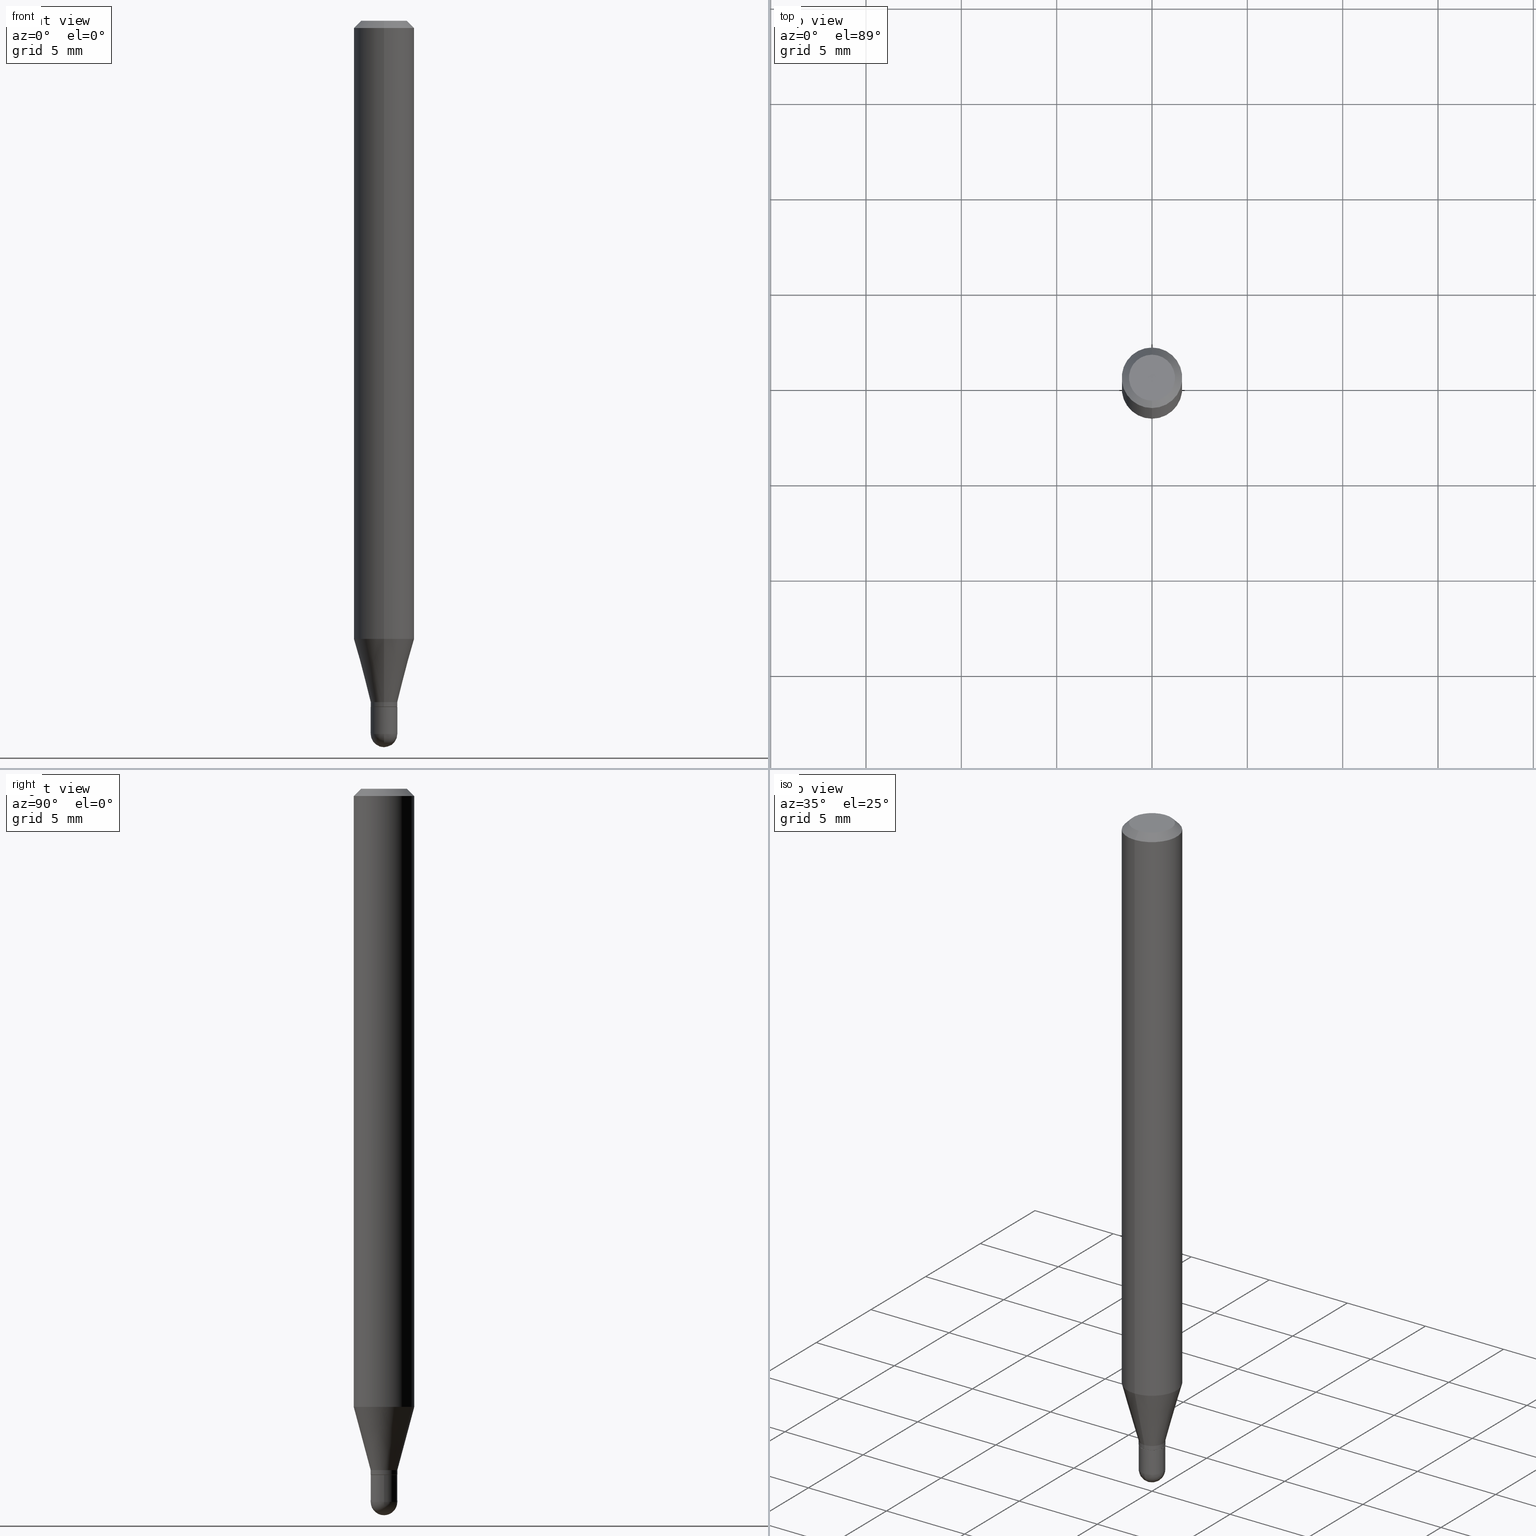
[diagram: canonical four-view strip — front | top / right | iso, engineering-drawing reading convention]
A machine part, canonical four-view strip (front | top / right | iso — engineering-drawing reading convention). The complete STEP part file that produces these views, byte-faithful:
ISO-10303-21;
HEADER;
FILE_DESCRIPTION (( 'STEP AP203' ),
    '1' );
FILE_NAME ('00790.STEP',
    '2024-03-07T18:22:22',
    ( '' ),
    ( '' ),
    'SwSTEP 2.0',
    'SolidWorks 2023',
    '' );
FILE_SCHEMA (( 'CONFIG_CONTROL_DESIGN' ));
ENDSEC;

DATA;
#1 = CIRCLE ( 'NONE', #200, 0.02750000000000000014 ) ;
#2 = CARTESIAN_POINT ( 'NONE',  ( -3.773273898774340269E-16, -0.04749999999999999362, 1.569840803881563153E-16 ) ) ;
#3 = ORIENTED_EDGE ( 'NONE', *, *, #75, .T. ) ;
#4 = CARTESIAN_POINT ( 'NONE',  ( -1.885399922974945041E-16, -0.02700000000000494713, -1.417000000000000259 ) ) ;
#5 = ORIENTED_EDGE ( 'NONE', *, *, #28, .T. ) ;
#6 = SPHERICAL_SURFACE ( 'NONE', #468, 0.02749999999999996197 ) ;
#7 = EDGE_LOOP ( 'NONE', ( #124, #490, #376, #90 ) ) ;
#8 = FACE_OUTER_BOUND ( 'NONE', #131, .T. ) ;
#9 = EDGE_CURVE ( 'NONE', #419, #98, #21, .T. ) ;
#10 = VECTOR ( 'NONE', #345, 39.37007874015748143 ) ;
#11 = ORIENTED_EDGE ( 'NONE', *, *, #195, .T. ) ;
#12 = PRODUCT_DEFINITION_FORMATION_WITH_SPECIFIED_SOURCE ( 'ANY', '', #249, .NOT_KNOWN. ) ;
#13 = MANIFOLD_SOLID_BREP ( 'Body-Move/Copy2[2]', #189 ) ;
#14 = DIRECTION ( 'NONE',  ( -4.851104656540964275E-15, -0.7071067811865500152, -0.7071067811865450192 ) ) ;
#15 = DIMENSIONAL_EXPONENTS ( 1.000000000000000000, 0.000000000000000000, 0.000000000000000000, 0.000000000000000000, 0.000000000000000000, 0.000000000000000000, 0.000000000000000000 ) ;
#16 = VERTEX_POINT ( 'NONE', #381 ) ;
#17 = FACE_OUTER_BOUND ( 'NONE', #172, .T. ) ;
#18 = DIRECTION ( 'NONE',  ( -6.982962677686266711E-15, -1.000000000000000000, 3.491471195526703982E-15 ) ) ;
#19 = DIRECTION ( 'NONE',  ( -2.445475889225150789E-29, 3.491471195526703587E-15, 1.000000000000000000 ) ) ;
#20 = ORIENTED_EDGE ( 'NONE', *, *, #276, .F. ) ;
#21 = CIRCLE ( 'NONE', #414, 0.02699999999999999969 ) ;
#22 = VECTOR ( 'NONE', #363, 39.37007874015748143 ) ;
#23 = ORIENTED_EDGE ( 'NONE', *, *, #258, .F. ) ;
#24 = CARTESIAN_POINT ( 'NONE',  ( 3.440784576139787326E-29, -4.912499972106071714E-15, -1.407000000000000028 ) ) ;
#25 = ORIENTED_EDGE ( 'NONE', *, *, #424, .F. ) ;
#26 = PERSON_AND_ORGANIZATION_ROLE ( 'classification_officer' ) ;
#27 = CARTESIAN_POINT ( 'NONE',  ( -1.885399922974945041E-16, -0.02700000000000494713, -1.417000000000000259 ) ) ;
#28 = EDGE_CURVE ( 'NONE', #366, #297, #430, .T. ) ;
#29 = CIRCLE ( 'NONE', #160, 0.02699999999999999969 ) ;
#30 = APPLICATION_PROTOCOL_DEFINITION ( 'international standard', 'config_control_design', 1994, #62 ) ;
#31 = DIRECTION ( 'NONE',  ( -6.982962677686265922E-15, -1.000000000000000000, 3.483106191921935554E-15 ) ) ;
#32 = CALENDAR_DATE ( 2024, 7, 3 ) ;
#33 = LINE ( 'NONE', #113, #500 ) ;
#34 = APPLICATION_CONTEXT ( 'configuration controlled 3d designs of mechanical parts and assemblies' ) ;
#35 = ADVANCED_FACE ( 'NONE', ( #275 ), #269, .T. ) ;
#36 = DIRECTION ( 'NONE',  ( 1.000000000000000000, 0.000000000000000000, 0.000000000000000000 ) ) ;
#37 = DIRECTION ( 'NONE',  ( 1.000000000000000000, -6.982962677686277755E-15, 0.000000000000000000 ) ) ;
#38 = AXIS2_PLACEMENT_3D ( 'NONE', #394, #204, #463 ) ;
#39 = CIRCLE ( 'NONE', #415, 0.02750000000000000014 ) ;
#40 = DATE_TIME_ROLE ( 'classification_date' ) ;
#41 = LOCAL_TIME ( 13, 22, 22.00000000000000000, #503 ) ;
#42 = DIRECTION ( 'NONE',  ( -6.982962677686265922E-15, -1.000000000000000000, 0.000000000000000000 ) ) ;
#43 = DIRECTION ( 'NONE',  ( 2.445475889225150509E-29, -3.491471195526703587E-15, -1.000000000000000000 ) ) ;
#44 = CARTESIAN_POINT ( 'NONE',  ( 0.000000000000000000, 0.000000000000000000, 0.000000000000000000 ) ) ;
#45 = ADVANCED_FACE ( 'NONE', ( #64 ), #231, .T. ) ;
#46 = ORIENTED_EDGE ( 'NONE', *, *, #418, .F. ) ;
#47 = CIRCLE ( 'NONE', #357, 0.06250000000000000000 ) ;
#48 = DIRECTION ( 'NONE',  ( 2.445475889225150789E-29, -3.491471195526703587E-15, -1.000000000000000000 ) ) ;
#49 = LINE ( 'NONE', #212, #22 ) ;
#50 = ORIENTED_EDGE ( 'NONE', *, *, #386, .T. ) ;
#51 = EDGE_CURVE ( 'NONE', #498, #122, #1, .T. ) ;
#52 = DIRECTION ( 'NONE',  ( -2.445468806185136597E-29, 3.491481338843145583E-15, 1.000000000000000000 ) ) ;
#53 = ORIENTED_EDGE ( 'NONE', *, *, #407, .T. ) ;
#54 = DIRECTION ( 'NONE',  ( -2.445475889225150789E-29, 3.491471195526703587E-15, 1.000000000000000000 ) ) ;
#55 = AXIS2_PLACEMENT_3D ( 'NONE', #385, #185, #344 ) ;
#56 = ORGANIZATION ( 'UNSPECIFIED', 'UNSPECIFIED', '' ) ;
#57 = ORIENTED_EDGE ( 'NONE', *, *, #106, .F. ) ;
#58 = FACE_OUTER_BOUND ( 'NONE', #421, .T. ) ;
#59 = DIRECTION ( 'NONE',  ( -2.445475889225150789E-29, 3.491471195526703587E-15, 1.000000000000000000 ) ) ;
#60 = DIRECTION ( 'NONE',  ( 6.982962677686265922E-15, 1.000000000000000000, -3.483106191921935554E-15 ) ) ;
#61 = ORIENTED_EDGE ( 'NONE', *, *, #289, .F. ) ;
#62 = APPLICATION_CONTEXT ( 'configuration controlled 3d designs of mechanical parts and assemblies' ) ;
#63 = CARTESIAN_POINT ( 'NONE',  ( 3.598601109812370247E-29, -5.144574050144187163E-15, -1.472500000000000142 ) ) ;
#64 = FACE_OUTER_BOUND ( 'NONE', #273, .T. ) ;
#65 =( NAMED_UNIT ( * ) SI_UNIT ( $, .STERADIAN. ) SOLID_ANGLE_UNIT ( ) );
#66 = ORIENTED_EDGE ( 'NONE', *, *, #51, .T. ) ;
#67 = EDGE_CURVE ( 'NONE', #288, #336, #364, .T. ) ;
#68 = APPROVAL_DATE_TIME ( #355, #109 ) ;
#69 = CARTESIAN_POINT ( 'NONE',  ( 3.465229298364339647E-29, -4.947429057140738329E-15, -1.417000000000000259 ) ) ;
#70 = PERSON_AND_ORGANIZATION ( #399, #56 ) ;
#71 = FACE_OUTER_BOUND ( 'NONE', #261, .T. ) ;
#72 = CONICAL_SURFACE ( 'NONE', #285, 0.02699999999999999969, 0.7853981633974739252 ) ;
#73 = PERSON_AND_ORGANIZATION ( #399, #56 ) ;
#74 = FACE_OUTER_BOUND ( 'NONE', #163, .T. ) ;
#75 = EDGE_CURVE ( 'NONE', #297, #366, #483, .T. ) ;
#76 = SECURITY_CLASSIFICATION_LEVEL ( 'unclassified' ) ;
#77 = CARTESIAN_POINT ( 'NONE',  ( 3.440784576139787326E-29, -4.912499972106071714E-15, -1.407000000000000028 ) ) ;
#78 = LINE ( 'NONE', #323, #97 ) ;
#79 = AXIS2_PLACEMENT_3D ( 'NONE', #222, #377, #140 ) ;
#80 = DIRECTION ( 'NONE',  ( 6.982962677686265922E-15, 1.000000000000000000, 0.000000000000000000 ) ) ;
#81 = ADVANCED_FACE ( 'NONE', ( #149 ), #104, .T. ) ;
#82 = CARTESIAN_POINT ( 'NONE',  ( 3.440784576139787326E-29, -4.912499972106071714E-15, -1.407000000000000028 ) ) ;
#83 = ORIENTED_EDGE ( 'NONE', *, *, #135, .F. ) ;
#84 = FACE_OUTER_BOUND ( 'NONE', #7, .T. ) ;
#85 = VERTEX_POINT ( 'NONE', #501 ) ;
#86 = AXIS2_PLACEMENT_3D ( 'NONE', #471, #313, #354 ) ;
#87 = AXIS2_PLACEMENT_3D ( 'NONE', #234, #392, #31 ) ;
#88 = CARTESIAN_POINT ( 'NONE',  ( 3.840629472727447874E-16, 0.04749999999999999362, -1.747056831868805136E-16 ) ) ;
#89 = LOCAL_TIME ( 13, 22, 22.00000000000000000, #238 ) ;
#90 = ORIENTED_EDGE ( 'NONE', *, *, #379, .F. ) ;
#91 = CC_DESIGN_PERSON_AND_ORGANIZATION_ASSIGNMENT ( #308, #143, ( #249 ) ) ;
#92 = CYLINDRICAL_SURFACE ( 'NONE', #169, 0.02749999999999992381 ) ;
#93 = ORIENTED_EDGE ( 'NONE', *, *, #203, .F. ) ;
#94 = DIRECTION ( 'NONE',  ( -6.982962677686265922E-15, -1.000000000000000000, 3.483106191921935554E-15 ) ) ;
#95 = ORIENTED_EDGE ( 'NONE', *, *, #258, .T. ) ;
#96 = APPLICATION_PROTOCOL_DEFINITION ( 'international standard', 'config_control_design', 1994, #34 ) ;
#97 = VECTOR ( 'NONE', #243, 39.37007874015748143 ) ;
#98 = VERTEX_POINT ( 'NONE', #27 ) ;
#99 = DIRECTION ( 'NONE',  ( -1.000000000000000000, 6.982962677686265922E-15, -4.876176775795935793E-29 ) ) ;
#100 = VERTEX_POINT ( 'NONE', #352 ) ;
#101 = DIRECTION ( 'NONE',  ( -6.982962677686265922E-15, -1.000000000000000000, 3.491471195526703193E-15 ) ) ;
#102 = DIRECTION ( 'NONE',  ( -6.982962677686265133E-15, -1.000000000000000000, 0.000000000000000000 ) ) ;
#103 = EDGE_LOOP ( 'NONE', ( #23, #373, #371, #368 ) ) ;
#104 = CONICAL_SURFACE ( 'NONE', #227, 0.02749999999999992381, 0.2617993877991502960 ) ;
#105 = CONICAL_SURFACE ( 'NONE', #229, 0.02699999999999999969, 0.7853981633974739252 ) ;
#106 = EDGE_CURVE ( 'NONE', #336, #291, #432, .T. ) ;
#107 = DESIGN_CONTEXT ( 'detailed design', #62, 'design' ) ;
#108 = APPROVAL_STATUS ( 'not_yet_approved' ) ;
#109 = APPROVAL ( #391, 'UNSPECIFIED' ) ;
#110 = VERTEX_POINT ( 'NONE', #282 ) ;
#111 = DIRECTION ( 'NONE',  ( -7.105427357601001070E-15, -1.000000000000000000, 0.000000000000000000 ) ) ;
#112 = PERSON_AND_ORGANIZATION ( #399, #56 ) ;
#113 = CARTESIAN_POINT ( 'NONE',  ( -4.364351673553916201E-16, -0.06250000000000000000, 2.182169497204189742E-16 ) ) ;
#114 = CONICAL_SURFACE ( 'NONE', #244, 0.06250000000000000000, 0.7853981633974483900 ) ;
#115 = COORDINATED_UNIVERSAL_TIME_OFFSET ( 5, 0, .BEHIND. ) ;
#116 = DIRECTION ( 'NONE',  ( -6.982962677686265922E-15, -1.000000000000000000, 3.491471195526703587E-15 ) ) ;
#117 = DIRECTION ( 'NONE',  ( -6.982962677686265922E-15, -1.000000000000000000, 0.000000000000000000 ) ) ;
#118 = CARTESIAN_POINT ( 'NONE',  ( 3.465239335032039310E-29, -4.947414684061339542E-15, -1.417000000000000259 ) ) ;
#119 = ADVANCED_FACE ( 'NONE', ( #356 ), #504, .T. ) ;
#120 = AXIS2_PLACEMENT_3D ( 'NONE', #125, #43, #292 ) ;
#121 = DIRECTION ( 'NONE',  ( -1.807323732225330928E-15, -0.2588190451025182970, 0.9659258262890689783 ) ) ;
#122 = VERTEX_POINT ( 'NONE', #509 ) ;
#123 = DIRECTION ( 'NONE',  ( -2.445475889225150789E-29, 3.491471195526703587E-15, 1.000000000000000000 ) ) ;
#124 = ORIENTED_EDGE ( 'NONE', *, *, #502, .F. ) ;
#125 = CARTESIAN_POINT ( 'NONE',  ( 3.316907271900976096E-16, 0.04749999999999999362, -1.702752824871994641E-16 ) ) ;
#126 = ADVANCED_FACE ( 'NONE', ( #74 ), #147, .T. ) ;
#127 = EDGE_LOOP ( 'NONE', ( #215, #325, #50, #20 ) ) ;
#128 = CLOSED_SHELL ( 'NONE', ( #35, #283, #450, #119, #45 ) ) ;
#129 = DIRECTION ( 'NONE',  ( -1.000000000000000000, 6.982962677686265922E-15, -4.883557194083112901E-29 ) ) ;
#130 = ADVANCED_BREP_SHAPE_REPRESENTATION ( '00790', ( #161, #13, #349 ), #217 ) ;
#131 = EDGE_LOOP ( 'NONE', ( #255, #210, #250, #61 ) ) ;
#132 = LINE ( 'NONE', #408, #443 ) ;
#133 =( NAMED_UNIT ( * ) PLANE_ANGLE_UNIT ( ) SI_UNIT ( $, .RADIAN. ) );
#134 = EDGE_LOOP ( 'NONE', ( #25, #177 ) ) ;
#135 = EDGE_CURVE ( 'NONE', #409, #16, #316, .T. ) ;
#136 = DIRECTION ( 'NONE',  ( -2.445468806185136597E-29, 3.491481338843145583E-15, 1.000000000000000000 ) ) ;
#137 = ORIENTED_EDGE ( 'NONE', *, *, #28, .F. ) ;
#138 = DIRECTION ( 'NONE',  ( -2.445475889225150789E-29, 3.491471195526703587E-15, 1.000000000000000000 ) ) ;
#139 = ORIENTED_EDGE ( 'NONE', *, *, #219, .F. ) ;
#140 = DIRECTION ( 'NONE',  ( -6.982962677686265922E-15, -1.000000000000000000, 3.491471195526703587E-15 ) ) ;
#141 = CARTESIAN_POINT ( 'NONE',  ( 0.000000000000000000, 0.000000000000000000, 0.000000000000000000 ) ) ;
#142 = EDGE_CURVE ( 'NONE', #85, #110, #33, .T. ) ;
#143 = PERSON_AND_ORGANIZATION_ROLE ( 'design_owner' ) ;
#144 = ORIENTED_EDGE ( 'NONE', *, *, #464, .T. ) ;
#145 = AXIS2_PLACEMENT_3D ( 'NONE', #77, #199, #117 ) ;
#146 = PERSON_AND_ORGANIZATION_ROLE ( 'creator' ) ;
#147 = CYLINDRICAL_SURFACE ( 'NONE', #262, 0.06250000000000000000 ) ;
#148 = DATE_AND_TIME ( #396, #41 ) ;
#149 = FACE_OUTER_BOUND ( 'NONE', #127, .T. ) ;
#150 = APPROVAL_STATUS ( 'not_yet_approved' ) ;
#151 = FACE_OUTER_BOUND ( 'NONE', #134, .T. ) ;
#152 = CIRCLE ( 'NONE', #460, 0.06250000000000000000 ) ;
#153 = SHAPE_DEFINITION_REPRESENTATION ( #211, #130 ) ;
#154 = DIRECTION ( 'NONE',  ( -2.445475889225150789E-29, 3.491471195526703587E-15, 1.000000000000000000 ) ) ;
#155 = DIRECTION ( 'NONE',  ( -2.445475889225150789E-29, 3.491471195526703587E-15, 1.000000000000000000 ) ) ;
#156 = EDGE_CURVE ( 'NONE', #337, #225, #382, .T. ) ;
#157 = LINE ( 'NONE', #165, #201 ) ;
#158 = ORIENTED_EDGE ( 'NONE', *, *, #488, .F. ) ;
#159 = AXIS2_PLACEMENT_3D ( 'NONE', #304, #232, #457 ) ;
#160 = AXIS2_PLACEMENT_3D ( 'NONE', #179, #420, #186 ) ;
#161 = MANIFOLD_SOLID_BREP ( 'Body-Move/Copy2[1]', #128 ) ;
#162 = CARTESIAN_POINT ( 'NONE',  ( -1.920314736363377824E-16, -0.02750000000000496492, -1.416500000000000314 ) ) ;
#163 = EDGE_LOOP ( 'NONE', ( #362, #95, #426, #449 ) ) ;
#164 = ADVANCED_FACE ( 'NONE', ( #71 ), #307, .T. ) ;
#165 = CARTESIAN_POINT ( 'NONE',  ( 1.953992523340613745E-16, 0.02749999999999501107, -1.407000000000000028 ) ) ;
#166 = ORIENTED_EDGE ( 'NONE', *, *, #369, .F. ) ;
#167 = CARTESIAN_POINT ( 'NONE',  ( 3.668213833837728461E-31, -5.237206793290058438E-17, -0.01500000000000000812 ) ) ;
#168 = VECTOR ( 'NONE', #155, 39.37007874015748143 ) ;
#169 = AXIS2_PLACEMENT_3D ( 'NONE', #44, #254, #402 ) ;
#170 = CARTESIAN_POINT ( 'NONE',  ( -0.02750000000000000708, -4.848918411959607997E-15, -1.472500000000000142 ) ) ;
#171 = LOCAL_TIME ( 13, 22, 22.00000000000000000, #321 ) ;
#172 = EDGE_LOOP ( 'NONE', ( #257, #299, #53, #57 ) ) ;
#173 = FACE_OUTER_BOUND ( 'NONE', #103, .T. ) ;
#174 = VERTEX_POINT ( 'NONE', #240 ) ;
#175 = EDGE_CURVE ( 'NONE', #297, #413, #239, .T. ) ;
#176 = DIRECTION ( 'NONE',  ( 1.000000000000000000, -6.982962677686265922E-15, 4.883557194083112340E-29 ) ) ;
#177 = ORIENTED_EDGE ( 'NONE', *, *, #9, .F. ) ;
#178 = AXIS2_PLACEMENT_3D ( 'NONE', #141, #387, #423 ) ;
#179 = CARTESIAN_POINT ( 'NONE',  ( 3.465239335032039310E-29, -4.947414684061339542E-15, -1.417000000000000259 ) ) ;
#180 = CIRCLE ( 'NONE', #438, 0.06250000000000000000 ) ;
#181 = CC_DESIGN_APPROVAL ( #109, ( #508 ) ) ;
#182 = ORIENTED_EDGE ( 'NONE', *, *, #203, .T. ) ;
#183 = ADVANCED_FACE ( 'NONE', ( #151 ), #318, .F. ) ;
#184 = DIRECTION ( 'NONE',  ( 2.438088387897960049E-29, -3.491481338843145188E-15, -1.000000000000000000 ) ) ;
#185 = DIRECTION ( 'NONE',  ( -2.445468806185136597E-29, 3.491481338843145583E-15, 1.000000000000000000 ) ) ;
#186 = DIRECTION ( 'NONE',  ( -6.982962677686265133E-15, -1.000000000000000000, 0.000000000000000000 ) ) ;
#187 = CARTESIAN_POINT ( 'NONE',  ( 3.465229298364339647E-29, -4.947429057140738329E-15, -1.417000000000000259 ) ) ;
#188 = APPROVAL_ROLE ( '' ) ;
#189 = CLOSED_SHELL ( 'NONE', ( #472, #298, #458, #126, #164, #81, #494, #241, #332, #183, #317, #347 ) ) ;
#190 = CARTESIAN_POINT ( 'NONE',  ( 3.440784576139787326E-29, -4.912499972106071714E-15, -1.407000000000000028 ) ) ;
#191 = VECTOR ( 'NONE', #121, 39.37007874015748143 ) ;
#192 = AXIS2_PLACEMENT_3D ( 'NONE', #497, #136, #454 ) ;
#193 = CALENDAR_DATE ( 2024, 7, 3 ) ;
#194 = DIRECTION ( 'NONE',  ( 4.937700262164548042E-15, 0.7071067811865451302, -0.7071067811865499042 ) ) ;
#195 = EDGE_CURVE ( 'NONE', #225, #409, #272, .T. ) ;
#196 = PERSON_AND_ORGANIZATION ( #399, #56 ) ;
#197 = DIRECTION ( 'NONE',  ( -2.445475889225150789E-29, 3.491471195526703587E-15, 1.000000000000000000 ) ) ;
#198 = DATE_AND_TIME ( #351, #171 ) ;
#199 = DIRECTION ( 'NONE',  ( -2.445475889225150789E-29, 3.491471195526703587E-15, 1.000000000000000000 ) ) ;
#200 = AXIS2_PLACEMENT_3D ( 'NONE', #187, #427, #220 ) ;
#201 = VECTOR ( 'NONE', #480, 39.37007874015748143 ) ;
#202 = CALENDAR_DATE ( 2024, 7, 3 ) ;
#203 = EDGE_CURVE ( 'NONE', #293, #498, #78, .T. ) ;
#204 = DIRECTION ( 'NONE',  ( -1.000000000000000000, 6.982962677686265922E-15, -4.883557194083112901E-29 ) ) ;
#205 = CARTESIAN_POINT ( 'NONE',  ( -1.920314736363373880E-16, -0.02750000000000483655, -1.407000000000000028 ) ) ;
#206 = CARTESIAN_POINT ( 'NONE',  ( 3.598601109812370247E-29, -5.144574050144187163E-15, -1.472500000000000142 ) ) ;
#207 = ORIENTED_EDGE ( 'NONE', *, *, #312, .F. ) ;
#208 = VECTOR ( 'NONE', #14, 39.37007874015748143 ) ;
#209 = CARTESIAN_POINT ( 'NONE',  ( 3.465239335032039310E-29, -4.947414684061339542E-15, -1.417000000000000259 ) ) ;
#210 = ORIENTED_EDGE ( 'NONE', *, *, #219, .T. ) ;
#211 = PRODUCT_DEFINITION_SHAPE ( 'NONE', 'NONE',  #508 ) ;
#212 = CARTESIAN_POINT ( 'NONE',  ( 0.02750000000000000708, -1.920314736363723691E-16, 1.340948613343882588E-30 ) ) ;
#213 = ORIENTED_EDGE ( 'NONE', *, *, #175, .T. ) ;
#214 = FACE_OUTER_BOUND ( 'NONE', #455, .T. ) ;
#215 = ORIENTED_EDGE ( 'NONE', *, *, #326, .F. ) ;
#216 = AXIS2_PLACEMENT_3D ( 'NONE', #118, #470, #116 ) ;
#217 =( GEOMETRIC_REPRESENTATION_CONTEXT ( 3 ) GLOBAL_UNCERTAINTY_ASSIGNED_CONTEXT ( ( #237 ) ) GLOBAL_UNIT_ASSIGNED_CONTEXT ( ( #489, #133, #65 ) ) REPRESENTATION_CONTEXT ( 'NONE', 'WORKASPACE' ) );
#218 = DIRECTION ( 'NONE',  ( -6.982962677686265922E-15, -1.000000000000000000, 0.000000000000000000 ) ) ;
#219 = EDGE_CURVE ( 'NONE', #419, #366, #398, .T. ) ;
#220 = DIRECTION ( 'NONE',  ( 1.000000000000000000, -6.982962677686279332E-15, 0.000000000000000000 ) ) ;
#221 = APPROVAL ( #108, 'UNSPECIFIED' ) ;
#222 = CARTESIAN_POINT ( 'NONE',  ( 0.000000000000000000, 0.000000000000000000, 0.000000000000000000 ) ) ;
#223 = CARTESIAN_POINT ( 'NONE',  ( 2.166887618135246261E-46, -3.093723285515544542E-32, -8.860801399362089902E-18 ) ) ;
#224 = LINE ( 'NONE', #380, #10 ) ;
#225 = VERTEX_POINT ( 'NONE', #284 ) ;
#226 = EDGE_CURVE ( 'NONE', #122, #498, #39, .T. ) ;
#227 = AXIS2_PLACEMENT_3D ( 'NONE', #190, #197, #466 ) ;
#228 = CYLINDRICAL_SURFACE ( 'NONE', #79, 0.06250000000000000000 ) ;
#229 = AXIS2_PLACEMENT_3D ( 'NONE', #327, #486, #290 ) ;
#230 = APPROVAL_PERSON_ORGANIZATION ( #196, #221, #465 ) ;
#231 = CYLINDRICAL_SURFACE ( 'NONE', #55, 0.02750000000000000708 ) ;
#232 = DIRECTION ( 'NONE',  ( -2.445475889225150789E-29, 3.491471195526703587E-15, 1.000000000000000000 ) ) ;
#233 = DIRECTION ( 'NONE',  ( -2.445468806185136597E-29, 3.491481338843145583E-15, 1.000000000000000000 ) ) ;
#234 = CARTESIAN_POINT ( 'NONE',  ( 3.668213833837728461E-31, -5.237206793290058438E-17, -0.01500000000000000812 ) ) ;
#235 = EDGE_CURVE ( 'NONE', #291, #110, #263, .T. ) ;
#236 = CC_DESIGN_DATE_AND_TIME_ASSIGNMENT ( #353, #40, ( #295 ) ) ;
#237 = UNCERTAINTY_MEASURE_WITH_UNIT (LENGTH_MEASURE( 1.000000000000000082E-05 ), #489, 'distance_accuracy_value', 'NONE');
#238 = COORDINATED_UNIVERSAL_TIME_OFFSET ( 5, 0, .BEHIND. ) ;
#239 = LINE ( 'NONE', #435, #168 ) ;
#240 = CARTESIAN_POINT ( 'NONE',  ( 4.440892098500934804E-16, 0.06249999999999551054, -1.276378221735089857 ) ) ;
#241 = ADVANCED_FACE ( 'NONE', ( #214 ), #493, .T. ) ;
#242 = APPROVAL_ROLE ( '' ) ;
#243 = DIRECTION ( 'NONE',  ( -2.445468806185136877E-29, 3.491481338843145188E-15, 1.000000000000000000 ) ) ;
#244 = AXIS2_PLACEMENT_3D ( 'NONE', #448, #495, #60 ) ;
#245 = LOCAL_TIME ( 13, 22, 22.00000000000000000, #428 ) ;
#246 = CARTESIAN_POINT ( 'NONE',  ( 3.121352166785234497E-29, -4.456437795785661971E-15, -1.276378221735089635 ) ) ;
#247 = DIRECTION ( 'NONE',  ( -2.445475889225150789E-29, 3.491471195526703587E-15, 1.000000000000000000 ) ) ;
#248 = DIRECTION ( 'NONE',  ( -6.982962677686265922E-15, -1.000000000000000000, 4.370956789862821150E-15 ) ) ;
#249 = PRODUCT ( '00790', '00790', '', ( #388 ) ) ;
#250 = ORIENTED_EDGE ( 'NONE', *, *, #75, .F. ) ;
#251 = CIRCLE ( 'NONE', #294, 0.04749999999999999362 ) ;
#252 = LOCAL_TIME ( 13, 22, 22.00000000000000000, #115 ) ;
#253 = APPROVAL ( #150, 'UNSPECIFIED' ) ;
#254 = DIRECTION ( 'NONE',  ( -2.445475889225150789E-29, 3.491471195526703587E-15, 1.000000000000000000 ) ) ;
#255 = ORIENTED_EDGE ( 'NONE', *, *, #424, .T. ) ;
#256 = DIRECTION ( 'NONE',  ( -6.982962677686266711E-15, -1.000000000000000000, 3.491471195526703982E-15 ) ) ;
#257 = ORIENTED_EDGE ( 'NONE', *, *, #67, .F. ) ;
#258 = EDGE_CURVE ( 'NONE', #174, #291, #132, .T. ) ;
#259 = CARTESIAN_POINT ( 'NONE',  ( 3.668213833837728461E-31, -5.237206793290058438E-17, -0.01500000000000000812 ) ) ;
#260 = PRODUCT_RELATED_PRODUCT_CATEGORY ( 'detail', '', ( #249 ) ) ;
#261 = EDGE_LOOP ( 'NONE', ( #311, #265, #207, #512 ) ) ;
#262 = AXIS2_PLACEMENT_3D ( 'NONE', #395, #315, #510 ) ;
#263 = CIRCLE ( 'NONE', #87, 0.06250000000000000000 ) ;
#264 = CARTESIAN_POINT ( 'NONE',  ( 0.02750000000000000708, -5.236349137930007031E-15, -1.472500000000000142 ) ) ;
#265 = ORIENTED_EDGE ( 'NONE', *, *, #326, .T. ) ;
#266 = CARTESIAN_POINT ( 'NONE',  ( 1.936228954946616648E-16, 0.02699999999999505226, -1.417000000000000259 ) ) ;
#267 = EDGE_LOOP ( 'NONE', ( #302, #66 ) ) ;
#268 = LINE ( 'NONE', #412, #208 ) ;
#269 = CYLINDRICAL_SURFACE ( 'NONE', #178, 0.02750000000000000708 ) ;
#270 = CC_DESIGN_PERSON_AND_ORGANIZATION_ASSIGNMENT ( #73, #26, ( #295 ) ) ;
#271 = DIRECTION ( 'NONE',  ( -6.982962677686265922E-15, -1.000000000000000000, 0.000000000000000000 ) ) ;
#272 = CIRCLE ( 'NONE', #301, 0.02750000000000000708 ) ;
#273 = EDGE_LOOP ( 'NONE', ( #93, #499, #11, #403, #487 ) ) ;
#274 = PERSON_AND_ORGANIZATION ( #399, #56 ) ;
#275 = FACE_OUTER_BOUND ( 'NONE', #492, .T. ) ;
#276 = EDGE_CURVE ( 'NONE', #174, #85, #47, .T. ) ;
#277 = CARTESIAN_POINT ( 'NONE',  ( 0.000000000000000000, 0.000000000000000000, 0.000000000000000000 ) ) ;
#278 = DIRECTION ( 'NONE',  ( -2.445468806185136597E-29, 3.491481338843145583E-15, 1.000000000000000000 ) ) ;
#279 = DATE_TIME_ROLE ( 'creation_date' ) ;
#280 = CARTESIAN_POINT ( 'NONE',  ( 4.364351673553919652E-16, 0.06249999999999995143, -0.01500000000000022669 ) ) ;
#281 = CC_DESIGN_APPROVAL ( #253, ( #295 ) ) ;
#282 = CARTESIAN_POINT ( 'NONE',  ( -4.364351673553912750E-16, -0.06250000000000005551, -0.01499999999999979128 ) ) ;
#283 = ADVANCED_FACE ( 'NONE', ( #84 ), #6, .T. ) ;
#284 = CARTESIAN_POINT ( 'NONE',  ( -1.953992523339914371E-16, -0.02750000000000512798, -1.472500000000000142 ) ) ;
#285 = AXIS2_PLACEMENT_3D ( 'NONE', #209, #442, #446 ) ;
#286 = CC_DESIGN_SECURITY_CLASSIFICATION ( #295, ( #12 ) ) ;
#287 = FACE_OUTER_BOUND ( 'NONE', #440, .T. ) ;
#288 = VERTEX_POINT ( 'NONE', #2 ) ;
#289 = EDGE_CURVE ( 'NONE', #98, #297, #511, .T. ) ;
#290 = DIRECTION ( 'NONE',  ( -6.982962677686265133E-15, -1.000000000000000000, 0.000000000000000000 ) ) ;
#291 = VERTEX_POINT ( 'NONE', #367 ) ;
#292 = DIRECTION ( 'NONE',  ( 6.982962677686265922E-15, 1.000000000000000000, -3.491471195526703587E-15 ) ) ;
#293 = VERTEX_POINT ( 'NONE', #170 ) ;
#294 = AXIS2_PLACEMENT_3D ( 'NONE', #439, #296, #256 ) ;
#295 = SECURITY_CLASSIFICATION ( '', '', #76 ) ;
#296 = DIRECTION ( 'NONE',  ( -2.445475889225150789E-29, 3.491471195526703587E-15, 1.000000000000000000 ) ) ;
#297 = VERTEX_POINT ( 'NONE', #162 ) ;
#298 = ADVANCED_FACE ( 'NONE', ( #8 ), #105, .T. ) ;
#299 = ORIENTED_EDGE ( 'NONE', *, *, #488, .T. ) ;
#300 = CARTESIAN_POINT ( 'NONE',  ( 3.465239335032039310E-29, -4.947414684061339542E-15, -1.417000000000000259 ) ) ;
#301 = AXIS2_PLACEMENT_3D ( 'NONE', #434, #278, #37 ) ;
#302 = ORIENTED_EDGE ( 'NONE', *, *, #226, .T. ) ;
#303 = FACE_OUTER_BOUND ( 'NONE', #267, .T. ) ;
#304 = CARTESIAN_POINT ( 'NONE',  ( 3.464016597087426402E-29, -4.945668948463576585E-15, -1.416500000000000314 ) ) ;
#305 =( LENGTH_UNIT ( ) NAMED_UNIT ( * ) SI_UNIT ( $, .METRE. ) );
#306 = ORIENTED_EDGE ( 'NONE', *, *, #502, .T. ) ;
#307 = CONICAL_SURFACE ( 'NONE', #145, 0.02749999999999992381, 0.2617993877991502960 ) ;
#308 = PERSON_AND_ORGANIZATION ( #399, #56 ) ;
#309 = AXIS2_PLACEMENT_3D ( 'NONE', #375, #54, #101 ) ;
#310 = CC_DESIGN_APPROVAL ( #221, ( #12 ) ) ;
#311 = ORIENTED_EDGE ( 'NONE', *, *, #400, .T. ) ;
#312 = EDGE_CURVE ( 'NONE', #85, #174, #180, .T. ) ;
#313 = DIRECTION ( 'NONE',  ( -2.445468806185136597E-29, 3.491481338843145583E-15, 1.000000000000000000 ) ) ;
#314 = PERSON_AND_ORGANIZATION_ROLE ( 'design_supplier' ) ;
#315 = DIRECTION ( 'NONE',  ( -2.445475889225150789E-29, 3.491471195526703587E-15, 1.000000000000000000 ) ) ;
#316 = CIRCLE ( 'NONE', #86, 0.02750000000000000708 ) ;
#317 = ADVANCED_FACE ( 'NONE', ( #287 ), #72, .T. ) ;
#318 = PLANE ( 'NONE',  #216 ) ;
#319 = AXIS2_PLACEMENT_3D ( 'NONE', #24, #138, #218 ) ;
#320 = APPROVAL_PERSON_ORGANIZATION ( #461, #109, #242 ) ;
#321 = COORDINATED_UNIVERSAL_TIME_OFFSET ( 5, 0, .BEHIND. ) ;
#322 = DIRECTION ( 'NONE',  ( -2.445475889225150789E-29, 3.491471195526703587E-15, 1.000000000000000000 ) ) ;
#323 = CARTESIAN_POINT ( 'NONE',  ( -0.02750000000000000708, 1.953992523340276014E-16, -1.352707149820099356E-30 ) ) ;
#324 = FACE_OUTER_BOUND ( 'NONE', #452, .T. ) ;
#325 = ORIENTED_EDGE ( 'NONE', *, *, #418, .T. ) ;
#326 = EDGE_CURVE ( 'NONE', #100, #174, #157, .T. ) ;
#327 = CARTESIAN_POINT ( 'NONE',  ( 3.465239335032039310E-29, -4.947414684061339542E-15, -1.417000000000000259 ) ) ;
#328 = ORIENTED_EDGE ( 'NONE', *, *, #400, .F. ) ;
#329 = DIRECTION ( 'NONE',  ( -2.445475889225150789E-29, 3.491471195526703587E-15, 1.000000000000000000 ) ) ;
#330 = EDGE_LOOP ( 'NONE', ( #479, #306, #83, #411 ) ) ;
#331 = PLANE ( 'NONE',  #120 ) ;
#332 = ADVANCED_FACE ( 'NONE', ( #324 ), #331, .F. ) ;
#333 = CIRCLE ( 'NONE', #319, 0.02749999999999992381 ) ;
#334 = APPROVAL_PERSON_ORGANIZATION ( #505, #253, #188 ) ;
#335 = DIRECTION ( 'NONE',  ( 1.000000000000000000, -6.982962677686277755E-15, 0.000000000000000000 ) ) ;
#336 = VERTEX_POINT ( 'NONE', #88 ) ;
#337 = VERTEX_POINT ( 'NONE', #478 ) ;
#338 = ORIENTED_EDGE ( 'NONE', *, *, #106, .T. ) ;
#339 = AXIS2_PLACEMENT_3D ( 'NONE', #410, #52, #335 ) ;
#340 = CARTESIAN_POINT ( 'NONE',  ( 1.920314736364070050E-16, 0.02749999999999505271, -1.417000000000000259 ) ) ;
#341 = CC_DESIGN_PERSON_AND_ORGANIZATION_ASSIGNMENT ( #70, #146, ( #508 ) ) ;
#342 = ORIENTED_EDGE ( 'NONE', *, *, #175, .F. ) ;
#343 = LENGTH_MEASURE_WITH_UNIT ( LENGTH_MEASURE( 0.02539999999999999897 ), #305 );
#344 = DIRECTION ( 'NONE',  ( 1.000000000000000000, -6.982962677686265922E-15, 4.876176775795935232E-29 ) ) ;
#345 = DIRECTION ( 'NONE',  ( -2.445475889225150789E-29, 3.491471195526703587E-15, 1.000000000000000000 ) ) ;
#346 = ORIENTED_EDGE ( 'NONE', *, *, #464, .F. ) ;
#347 = ADVANCED_FACE ( 'NONE', ( #476 ), #92, .T. ) ;
#348 = DATE_AND_TIME ( #202, #252 ) ;
#349 = AXIS2_PLACEMENT_3D ( 'NONE', #277, #393, #36 ) ;
#350 = CARTESIAN_POINT ( 'NONE',  ( 3.464016597087426402E-29, -4.945668948463576585E-15, -1.416500000000000314 ) ) ;
#351 = CALENDAR_DATE ( 2024, 7, 3 ) ;
#352 = CARTESIAN_POINT ( 'NONE',  ( 3.197442310920775630E-16, 0.02749999999999501107, -1.407000000000000028 ) ) ;
#353 = DATE_AND_TIME ( #32, #89 ) ;
#354 = DIRECTION ( 'NONE',  ( 1.000000000000000000, -6.982962677686277755E-15, 0.000000000000000000 ) ) ;
#355 = DATE_AND_TIME ( #193, #245 ) ;
#356 = FACE_OUTER_BOUND ( 'NONE', #330, .T. ) ;
#357 = AXIS2_PLACEMENT_3D ( 'NONE', #372, #360, #482 ) ;
#358 = APPROVAL_DATE_TIME ( #348, #253 ) ;
#359 = DIRECTION ( 'NONE',  ( -1.000000000000000000, 7.105427357601001070E-15, -4.926315508542082329E-29 ) ) ;
#360 = DIRECTION ( 'NONE',  ( -2.445475889225150789E-29, 3.491471195526703587E-15, 1.000000000000000000 ) ) ;
#361 = EDGE_CURVE ( 'NONE', #409, #122, #49, .T. ) ;
#362 = ORIENTED_EDGE ( 'NONE', *, *, #312, .T. ) ;
#363 = DIRECTION ( 'NONE',  ( -2.445468806185136877E-29, 3.491481338843145188E-15, 1.000000000000000000 ) ) ;
#364 = CIRCLE ( 'NONE', #405, 0.04749999999999999362 ) ;
#365 = CIRCLE ( 'NONE', #374, 0.02749999999999996197 ) ;
#366 = VERTEX_POINT ( 'NONE', #370 ) ;
#367 = CARTESIAN_POINT ( 'NONE',  ( 4.440892098500940720E-16, 0.06249999999999995143, -0.01500000000000022669 ) ) ;
#368 = ORIENTED_EDGE ( 'NONE', *, *, #235, .F. ) ;
#369 = EDGE_CURVE ( 'NONE', #336, #288, #251, .T. ) ;
#370 = CARTESIAN_POINT ( 'NONE',  ( 1.953992523340609554E-16, 0.02749999999999488270, -1.416500000000000314 ) ) ;
#371 = ORIENTED_EDGE ( 'NONE', *, *, #142, .T. ) ;
#372 = CARTESIAN_POINT ( 'NONE',  ( 3.121352166785234497E-29, -4.456437795785661971E-15, -1.276378221735089635 ) ) ;
#373 = ORIENTED_EDGE ( 'NONE', *, *, #276, .T. ) ;
#374 = AXIS2_PLACEMENT_3D ( 'NONE', #63, #176, #384 ) ;
#375 = CARTESIAN_POINT ( 'NONE',  ( 0.000000000000000000, 0.000000000000000000, 0.000000000000000000 ) ) ;
#376 = ORIENTED_EDGE ( 'NONE', *, *, #436, .F. ) ;
#377 = DIRECTION ( 'NONE',  ( -2.445475889225150789E-29, 3.491471195526703587E-15, 1.000000000000000000 ) ) ;
#378 = DIRECTION ( 'NONE',  ( -2.445475889225150789E-29, 3.491471195526703587E-15, 1.000000000000000000 ) ) ;
#379 = EDGE_CURVE ( 'NONE', #16, #293, #475, .T. ) ;
#380 = CARTESIAN_POINT ( 'NONE',  ( 1.953992523340269851E-16, 0.02749999999999992381, -9.601545787698407601E-17 ) ) ;
#381 = CARTESIAN_POINT ( 'NONE',  ( 1.920314736364081883E-16, 0.02749999999999484107, -1.472500000000000142 ) ) ;
#382 = CIRCLE ( 'NONE', #397, 0.02749999999999996197 ) ;
#383 = AXIS2_PLACEMENT_3D ( 'NONE', #167, #48, #401 ) ;
#384 = DIRECTION ( 'NONE',  ( 6.982962677686265922E-15, 1.000000000000000000, 0.000000000000000000 ) ) ;
#385 = CARTESIAN_POINT ( 'NONE',  ( 0.000000000000000000, 0.000000000000000000, 0.000000000000000000 ) ) ;
#386 = EDGE_CURVE ( 'NONE', #413, #85, #437, .T. ) ;
#387 = DIRECTION ( 'NONE',  ( -2.445468806185136597E-29, 3.491481338843145583E-15, 1.000000000000000000 ) ) ;
#388 = MECHANICAL_CONTEXT ( 'NONE', #34, 'mechanical' ) ;
#389 = DIRECTION ( 'NONE',  ( 1.000000000000000000, -6.982962677686279332E-15, 0.000000000000000000 ) ) ;
#390 = AXIS2_PLACEMENT_3D ( 'NONE', #82, #247, #271 ) ;
#391 = APPROVAL_STATUS ( 'not_yet_approved' ) ;
#392 = DIRECTION ( 'NONE',  ( -2.445475889225150789E-29, 3.491471195526703587E-15, 1.000000000000000000 ) ) ;
#393 = DIRECTION ( 'NONE',  ( 0.000000000000000000, 0.000000000000000000, 1.000000000000000000 ) ) ;
#394 = CARTESIAN_POINT ( 'NONE',  ( 3.598601109812370247E-29, -5.144574050144187163E-15, -1.472500000000000142 ) ) ;
#395 = CARTESIAN_POINT ( 'NONE',  ( 0.000000000000000000, 0.000000000000000000, 0.000000000000000000 ) ) ;
#396 = CALENDAR_DATE ( 2024, 7, 3 ) ;
#397 = AXIS2_PLACEMENT_3D ( 'NONE', #506, #359, #111 ) ;
#398 = LINE ( 'NONE', #429, #484 ) ;
#399 = PERSON ( 'UNSPECIFIED', 'UNSPECIFIED', 'UNSPECIFIED', ('UNSPECIFIED'), ('UNSPECIFIED'), ('UNSPECIFIED') ) ;
#400 = EDGE_CURVE ( 'NONE', #413, #100, #416, .T. ) ;
#401 = DIRECTION ( 'NONE',  ( 6.982962677686265922E-15, 1.000000000000000000, -3.483106191921935554E-15 ) ) ;
#402 = DIRECTION ( 'NONE',  ( -6.982962677686265922E-15, -1.000000000000000000, 3.491471195526703193E-15 ) ) ;
#403 = ORIENTED_EDGE ( 'NONE', *, *, #361, .T. ) ;
#404 = DIRECTION ( 'NONE',  ( -4.937700262164674260E-15, -0.7071067811865632269, 0.7071067811865319186 ) ) ;
#405 = AXIS2_PLACEMENT_3D ( 'NONE', #223, #378, #18 ) ;
#406 = ORIENTED_EDGE ( 'NONE', *, *, #135, .T. ) ;
#407 = EDGE_CURVE ( 'NONE', #110, #291, #152, .T. ) ;
#408 = CARTESIAN_POINT ( 'NONE',  ( 4.440892098500625669E-16, 0.06250000000000000000, -2.182169497204189742E-16 ) ) ;
#409 = VERTEX_POINT ( 'NONE', #264 ) ;
#410 = CARTESIAN_POINT ( 'NONE',  ( 3.600952817107613706E-29, -5.141206271446532325E-15, -1.472500000000000142 ) ) ;
#411 = ORIENTED_EDGE ( 'NONE', *, *, #195, .F. ) ;
#412 = CARTESIAN_POINT ( 'NONE',  ( -4.287811248607203282E-16, -0.06250000000000005551, -0.01499999999999979128 ) ) ;
#413 = VERTEX_POINT ( 'NONE', #491 ) ;
#414 = AXIS2_PLACEMENT_3D ( 'NONE', #300, #59, #102 ) ;
#415 = AXIS2_PLACEMENT_3D ( 'NONE', #69, #233, #389 ) ;
#416 = CIRCLE ( 'NONE', #390, 0.02749999999999992381 ) ;
#417 = PLANE ( 'NONE',  #507 ) ;
#418 = EDGE_CURVE ( 'NONE', #100, #413, #333, .T. ) ;
#419 = VERTEX_POINT ( 'NONE', #266 ) ;
#420 = DIRECTION ( 'NONE',  ( -2.445475889225150789E-29, 3.491471195526703587E-15, 1.000000000000000000 ) ) ;
#421 = EDGE_LOOP ( 'NONE', ( #3, #144, #328, #342 ) ) ;
#422 = CARTESIAN_POINT ( 'NONE',  ( -0.02750000000000000014, -4.848918411959607997E-15, -1.417000000000000259 ) ) ;
#423 = DIRECTION ( 'NONE',  ( 1.000000000000000000, -6.982962677686265922E-15, 4.876176775795935232E-29 ) ) ;
#424 = EDGE_CURVE ( 'NONE', #98, #419, #29, .T. ) ;
#425 = VECTOR ( 'NONE', #404, 39.37007874015748143 ) ;
#426 = ORIENTED_EDGE ( 'NONE', *, *, #407, .F. ) ;
#427 = DIRECTION ( 'NONE',  ( -2.445468806185136597E-29, 3.491481338843145583E-15, 1.000000000000000000 ) ) ;
#428 = COORDINATED_UNIVERSAL_TIME_OFFSET ( 5, 0, .BEHIND. ) ;
#429 = CARTESIAN_POINT ( 'NONE',  ( 1.918465386552616839E-16, 0.02699999999999505226, -1.417000000000000259 ) ) ;
#430 = CIRCLE ( 'NONE', #159, 0.02749999999999992381 ) ;
#431 = APPROVAL_DATE_TIME ( #148, #221 ) ;
#432 = LINE ( 'NONE', #280, #467 ) ;
#433 = CC_DESIGN_DATE_AND_TIME_ASSIGNMENT ( #198, #279, ( #508 ) ) ;
#434 = CARTESIAN_POINT ( 'NONE',  ( 3.600952817107613706E-29, -5.141206271446532325E-15, -1.472500000000000142 ) ) ;
#435 = CARTESIAN_POINT ( 'NONE',  ( -1.920314736363717774E-16, -0.02749999999999992381, 9.601545787698407601E-17 ) ) ;
#436 = EDGE_CURVE ( 'NONE', #293, #225, #453, .T. ) ;
#437 = LINE ( 'NONE', #205, #191 ) ;
#438 = AXIS2_PLACEMENT_3D ( 'NONE', #246, #329, #248 ) ;
#439 = CARTESIAN_POINT ( 'NONE',  ( 2.166887618135246261E-46, -3.093723285515544542E-32, -8.860801399362089902E-18 ) ) ;
#440 = EDGE_LOOP ( 'NONE', ( #139, #444, #481, #137 ) ) ;
#441 = ORIENTED_EDGE ( 'NONE', *, *, #361, .F. ) ;
#442 = DIRECTION ( 'NONE',  ( -2.445475889225150789E-29, 3.491471195526703587E-15, 1.000000000000000000 ) ) ;
#443 = VECTOR ( 'NONE', #123, 39.37007874015748143 ) ;
#444 = ORIENTED_EDGE ( 'NONE', *, *, #9, .T. ) ;
#445 = CC_DESIGN_PERSON_AND_ORGANIZATION_ASSIGNMENT ( #112, #314, ( #12 ) ) ;
#446 = DIRECTION ( 'NONE',  ( -6.982962677686265133E-15, -1.000000000000000000, 0.000000000000000000 ) ) ;
#447 = ORIENTED_EDGE ( 'NONE', *, *, #235, .T. ) ;
#448 = CARTESIAN_POINT ( 'NONE',  ( 3.668213833837728461E-31, -5.237206793290058438E-17, -0.01500000000000000812 ) ) ;
#449 = ORIENTED_EDGE ( 'NONE', *, *, #142, .F. ) ;
#450 = ADVANCED_FACE ( 'NONE', ( #303 ), #417, .F. ) ;
#451 = CC_DESIGN_PERSON_AND_ORGANIZATION_ASSIGNMENT ( #274, #469, ( #12 ) ) ;
#452 = EDGE_LOOP ( 'NONE', ( #462, #496 ) ) ;
#453 = CIRCLE ( 'NONE', #192, 0.02750000000000000708 ) ;
#454 = DIRECTION ( 'NONE',  ( 1.000000000000000000, -6.982962677686277755E-15, 0.000000000000000000 ) ) ;
#455 = EDGE_LOOP ( 'NONE', ( #158, #166, #338, #447 ) ) ;
#456 = CYLINDRICAL_SURFACE ( 'NONE', #309, 0.02749999999999992381 ) ;
#457 = DIRECTION ( 'NONE',  ( -6.982962677686265922E-15, -1.000000000000000000, 0.000000000000000000 ) ) ;
#458 = ADVANCED_FACE ( 'NONE', ( #17 ), #114, .T. ) ;
#459 = EDGE_LOOP ( 'NONE', ( #346, #5, #213, #46 ) ) ;
#460 = AXIS2_PLACEMENT_3D ( 'NONE', #259, #19, #94 ) ;
#461 = PERSON_AND_ORGANIZATION ( #399, #56 ) ;
#462 = ORIENTED_EDGE ( 'NONE', *, *, #369, .T. ) ;
#463 = DIRECTION ( 'NONE',  ( 6.982962677686265922E-15, 1.000000000000000000, 0.000000000000000000 ) ) ;
#464 = EDGE_CURVE ( 'NONE', #366, #100, #224, .T. ) ;
#465 = APPROVAL_ROLE ( '' ) ;
#466 = DIRECTION ( 'NONE',  ( -6.982962677686265922E-15, -1.000000000000000000, 0.000000000000000000 ) ) ;
#467 = VECTOR ( 'NONE', #194, 39.37007874015748143 ) ;
#468 = AXIS2_PLACEMENT_3D ( 'NONE', #206, #129, #80 ) ;
#469 = PERSON_AND_ORGANIZATION_ROLE ( 'creator' ) ;
#470 = DIRECTION ( 'NONE',  ( -2.445475889225150509E-29, 3.491471195526703587E-15, 1.000000000000000000 ) ) ;
#471 = CARTESIAN_POINT ( 'NONE',  ( 3.600952817107613706E-29, -5.141206271446532325E-15, -1.472500000000000142 ) ) ;
#472 = ADVANCED_FACE ( 'NONE', ( #58 ), #456, .T. ) ;
#473 = DIRECTION ( 'NONE',  ( 5.024295867788190974E-15, 0.7071067811865681119, 0.7071067811865270336 ) ) ;
#474 = AXIS2_PLACEMENT_3D ( 'NONE', #350, #322, #42 ) ;
#475 = CIRCLE ( 'NONE', #339, 0.02750000000000000708 ) ;
#476 = FACE_OUTER_BOUND ( 'NONE', #459, .T. ) ;
#477 = ORIENTED_EDGE ( 'NONE', *, *, #226, .F. ) ;
#478 = CARTESIAN_POINT ( 'NONE',  ( 3.667027355630083166E-29, -5.238905897613546385E-15, -1.500000000000000222 ) ) ;
#479 = ORIENTED_EDGE ( 'NONE', *, *, #156, .F. ) ;
#480 = DIRECTION ( 'NONE',  ( 1.839019923739601104E-15, 0.2588190451025250693, 0.9659258262890670910 ) ) ;
#481 = ORIENTED_EDGE ( 'NONE', *, *, #289, .T. ) ;
#482 = DIRECTION ( 'NONE',  ( -6.982962677686265922E-15, -1.000000000000000000, 4.370956789862821150E-15 ) ) ;
#483 = CIRCLE ( 'NONE', #474, 0.02749999999999992381 ) ;
#484 = VECTOR ( 'NONE', #473, 39.37007874015748143 ) ;
#485 = ORIENTED_EDGE ( 'NONE', *, *, #379, .T. ) ;
#486 = DIRECTION ( 'NONE',  ( -2.445475889225150789E-29, 3.491471195526703587E-15, 1.000000000000000000 ) ) ;
#487 = ORIENTED_EDGE ( 'NONE', *, *, #51, .F. ) ;
#488 = EDGE_CURVE ( 'NONE', #288, #110, #268, .T. ) ;
#489 =( CONVERSION_BASED_UNIT ( 'INCH', #343 ) LENGTH_UNIT ( ) NAMED_UNIT ( #15 ) );
#490 = ORIENTED_EDGE ( 'NONE', *, *, #156, .T. ) ;
#491 = CARTESIAN_POINT ( 'NONE',  ( -1.920314736363373880E-16, -0.02750000000000483655, -1.407000000000000028 ) ) ;
#492 = EDGE_LOOP ( 'NONE', ( #485, #182, #477, #441, #406 ) ) ;
#493 = CONICAL_SURFACE ( 'NONE', #383, 0.06250000000000000000, 0.7853981633974483900 ) ;
#494 = ADVANCED_FACE ( 'NONE', ( #173 ), #228, .T. ) ;
#495 = DIRECTION ( 'NONE',  ( 2.445475889225150789E-29, -3.491471195526703587E-15, -1.000000000000000000 ) ) ;
#496 = ORIENTED_EDGE ( 'NONE', *, *, #67, .T. ) ;
#497 = CARTESIAN_POINT ( 'NONE',  ( 3.600952817107613706E-29, -5.141206271446532325E-15, -1.472500000000000142 ) ) ;
#498 = VERTEX_POINT ( 'NONE', #422 ) ;
#499 = ORIENTED_EDGE ( 'NONE', *, *, #436, .T. ) ;
#500 = VECTOR ( 'NONE', #154, 39.37007874015748143 ) ;
#501 = CARTESIAN_POINT ( 'NONE',  ( -4.364351673553605587E-16, -0.06250000000000446865, -1.276378221735089191 ) ) ;
#502 = EDGE_CURVE ( 'NONE', #337, #16, #365, .T. ) ;
#503 = COORDINATED_UNIVERSAL_TIME_OFFSET ( 5, 0, .BEHIND. ) ;
#504 = SPHERICAL_SURFACE ( 'NONE', #38, 0.02749999999999996197 ) ;
#505 = PERSON_AND_ORGANIZATION ( #399, #56 ) ;
#506 = CARTESIAN_POINT ( 'NONE',  ( 3.598601109812370247E-29, -5.144574050144187163E-15, -1.472500000000000142 ) ) ;
#507 = AXIS2_PLACEMENT_3D ( 'NONE', #340, #184, #99 ) ;
#508 = PRODUCT_DEFINITION ( 'UNKNOWN', '', #12, #107 ) ;
#509 = CARTESIAN_POINT ( 'NONE',  ( 0.02750000000000000014, -5.139460530777110821E-15, -1.417000000000000259 ) ) ;
#510 = DIRECTION ( 'NONE',  ( -6.982962677686265922E-15, -1.000000000000000000, 3.491471195526703587E-15 ) ) ;
#511 = LINE ( 'NONE', #4, #425 ) ;
#512 = ORIENTED_EDGE ( 'NONE', *, *, #386, .F. ) ;
ENDSEC;
END-ISO-10303-21;
